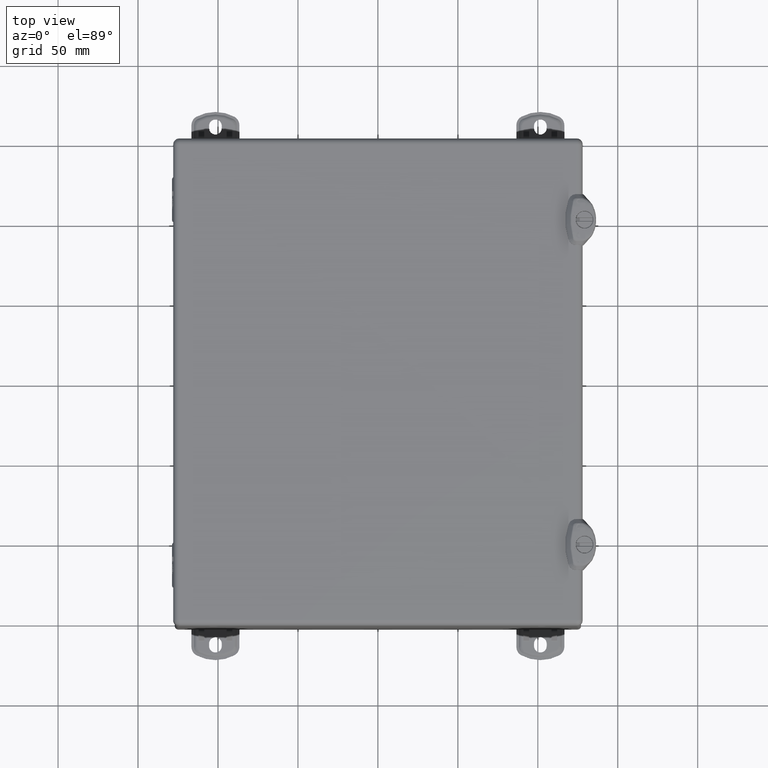
[diagram: clean part render]
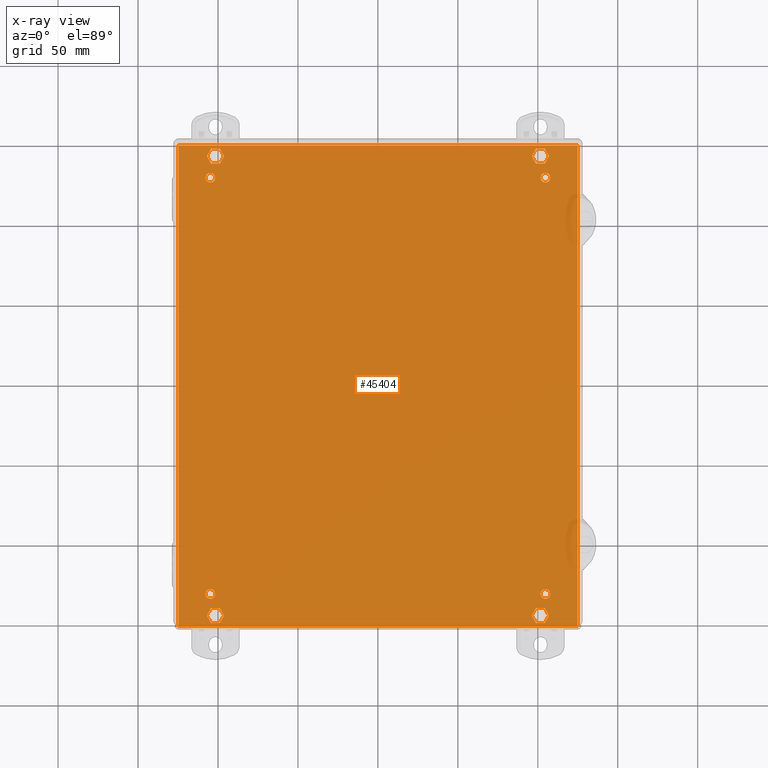
[diagram: x-ray — body ghosted, one internal face saturated and labeled with its STEP entity id]
A machine part, top view, then the same camera in x-ray: the body is ghosted and one INTERNAL B-rep face — a face not visible from any outside direction — is saturated and labeled: STEP entity #45404.
In plain terms, the highlighted planar face has unit normal (0, 0, 1).
Its self-contained STEP definition (entity closure, byte-faithful):
#2041=FACE_BOUND('',#7106,.T.);
#2042=FACE_BOUND('',#7107,.T.);
#2043=FACE_BOUND('',#7108,.T.);
#2044=FACE_BOUND('',#7109,.T.);
#2045=FACE_BOUND('',#7110,.T.);
#2046=FACE_BOUND('',#7111,.T.);
#2047=FACE_BOUND('',#7112,.T.);
#2048=FACE_BOUND('',#7113,.T.);
#3071=PLANE('',#48971);
#4304=FACE_OUTER_BOUND('',#7105,.T.);
#7105=EDGE_LOOP('',(#31372,#31373,#31374,#31375));
#7106=EDGE_LOOP('',(#31376));
#7107=EDGE_LOOP('',(#31377));
#7108=EDGE_LOOP('',(#31378));
#7109=EDGE_LOOP('',(#31379));
#7110=EDGE_LOOP('',(#31380,#31381,#31382,#31383,#31384,#31385));
#7111=EDGE_LOOP('',(#31386,#31387,#31388,#31389,#31390,#31391));
#7112=EDGE_LOOP('',(#31392,#31393,#31394,#31395,#31396,#31397));
#7113=EDGE_LOOP('',(#31398,#31399,#31400,#31401,#31402,#31403));
#9835=LINE('',#64717,#13693);
#9839=LINE('',#64724,#13697);
#9842=LINE('',#64730,#13700);
#9845=LINE('',#64736,#13703);
#9847=LINE('',#64741,#13705);
#9850=LINE('',#64745,#13708);
#9853=LINE('',#64753,#13711);
#9857=LINE('',#64760,#13715);
#9860=LINE('',#64766,#13718);
#9863=LINE('',#64772,#13721);
#9865=LINE('',#64777,#13723);
#9868=LINE('',#64781,#13726);
#9871=LINE('',#64789,#13729);
#9875=LINE('',#64796,#13733);
#9878=LINE('',#64802,#13736);
#9881=LINE('',#64808,#13739);
#9883=LINE('',#64813,#13741);
#9886=LINE('',#64817,#13744);
#9889=LINE('',#64825,#13747);
#9893=LINE('',#64832,#13751);
#9896=LINE('',#64838,#13754);
#9899=LINE('',#64844,#13757);
#9901=LINE('',#64849,#13759);
#9904=LINE('',#64853,#13762);
#10102=LINE('',#66090,#13960);
#10103=LINE('',#66092,#13961);
#10104=LINE('',#66094,#13962);
#10105=LINE('',#66096,#13963);
#13693=VECTOR('',#52743,0.393700787401575);
#13697=VECTOR('',#52749,0.393700787401575);
#13700=VECTOR('',#52754,0.393700787401575);
#13703=VECTOR('',#52759,0.393700787401575);
#13705=VECTOR('',#52763,0.393700787401575);
#13708=VECTOR('',#52768,0.393700787401575);
#13711=VECTOR('',#52773,0.393700787401575);
#13715=VECTOR('',#52779,0.393700787401575);
#13718=VECTOR('',#52784,0.393700787401575);
#13721=VECTOR('',#52789,0.393700787401575);
#13723=VECTOR('',#52793,0.393700787401575);
#13726=VECTOR('',#52798,0.393700787401575);
#13729=VECTOR('',#52803,0.393700787401575);
#13733=VECTOR('',#52809,0.393700787401575);
#13736=VECTOR('',#52814,0.393700787401575);
#13739=VECTOR('',#52819,0.393700787401575);
#13741=VECTOR('',#52823,0.393700787401575);
#13744=VECTOR('',#52828,0.393700787401575);
#13747=VECTOR('',#52833,0.393700787401575);
#13751=VECTOR('',#52839,0.393700787401575);
#13754=VECTOR('',#52844,0.393700787401575);
#13757=VECTOR('',#52849,0.393700787401575);
#13759=VECTOR('',#52853,0.393700787401575);
#13762=VECTOR('',#52858,0.393700787401575);
#13960=VECTOR('',#53626,0.393700787401575);
#13961=VECTOR('',#53629,0.393700787401575);
#13962=VECTOR('',#53632,0.393700787401575);
#13963=VECTOR('',#53635,0.393700787401575);
#17545=CIRCLE('',#48649,0.118);
#17547=CIRCLE('',#48652,0.118);
#17549=CIRCLE('',#48655,0.118);
#17551=CIRCLE('',#48658,0.118);
#19199=VERTEX_POINT('',#64687);
#19201=VERTEX_POINT('',#64693);
#19203=VERTEX_POINT('',#64699);
#19205=VERTEX_POINT('',#64705);
#19209=VERTEX_POINT('',#64714);
#19210=VERTEX_POINT('',#64716);
#19212=VERTEX_POINT('',#64722);
#19214=VERTEX_POINT('',#64728);
#19216=VERTEX_POINT('',#64734);
#19218=VERTEX_POINT('',#64740);
#19221=VERTEX_POINT('',#64750);
#19222=VERTEX_POINT('',#64752);
#19224=VERTEX_POINT('',#64758);
#19226=VERTEX_POINT('',#64764);
#19228=VERTEX_POINT('',#64770);
#19230=VERTEX_POINT('',#64776);
#19233=VERTEX_POINT('',#64786);
#19234=VERTEX_POINT('',#64788);
#19236=VERTEX_POINT('',#64794);
#19238=VERTEX_POINT('',#64800);
#19240=VERTEX_POINT('',#64806);
#19242=VERTEX_POINT('',#64812);
#19245=VERTEX_POINT('',#64822);
#19246=VERTEX_POINT('',#64824);
#19248=VERTEX_POINT('',#64830);
#19250=VERTEX_POINT('',#64836);
#19252=VERTEX_POINT('',#64842);
#19254=VERTEX_POINT('',#64848);
#19355=VERTEX_POINT('',#65426);
#19357=VERTEX_POINT('',#65434);
#19360=VERTEX_POINT('',#65443);
#19362=VERTEX_POINT('',#65454);
#23523=EDGE_CURVE('',#19199,#19199,#17545,.T.);
#23526=EDGE_CURVE('',#19201,#19201,#17547,.T.);
#23529=EDGE_CURVE('',#19203,#19203,#17549,.T.);
#23532=EDGE_CURVE('',#19205,#19205,#17551,.T.);
#23537=EDGE_CURVE('',#19210,#19209,#9835,.T.);
#23541=EDGE_CURVE('',#19209,#19212,#9839,.T.);
#23544=EDGE_CURVE('',#19212,#19214,#9842,.T.);
#23547=EDGE_CURVE('',#19214,#19216,#9845,.T.);
#23549=EDGE_CURVE('',#19218,#19210,#9847,.T.);
#23552=EDGE_CURVE('',#19216,#19218,#9850,.T.);
#23555=EDGE_CURVE('',#19222,#19221,#9853,.T.);
#23559=EDGE_CURVE('',#19221,#19224,#9857,.T.);
#23562=EDGE_CURVE('',#19224,#19226,#9860,.T.);
#23565=EDGE_CURVE('',#19226,#19228,#9863,.T.);
#23567=EDGE_CURVE('',#19230,#19222,#9865,.T.);
#23570=EDGE_CURVE('',#19228,#19230,#9868,.T.);
#23573=EDGE_CURVE('',#19234,#19233,#9871,.T.);
#23577=EDGE_CURVE('',#19233,#19236,#9875,.T.);
#23580=EDGE_CURVE('',#19236,#19238,#9878,.T.);
#23583=EDGE_CURVE('',#19238,#19240,#9881,.T.);
#23585=EDGE_CURVE('',#19242,#19234,#9883,.T.);
#23588=EDGE_CURVE('',#19240,#19242,#9886,.T.);
#23591=EDGE_CURVE('',#19246,#19245,#9889,.T.);
#23595=EDGE_CURVE('',#19245,#19248,#9893,.T.);
#23598=EDGE_CURVE('',#19248,#19250,#9896,.T.);
#23601=EDGE_CURVE('',#19250,#19252,#9899,.T.);
#23603=EDGE_CURVE('',#19254,#19246,#9901,.T.);
#23606=EDGE_CURVE('',#19252,#19254,#9904,.T.);
#23970=EDGE_CURVE('',#19360,#19362,#10102,.T.);
#23971=EDGE_CURVE('',#19355,#19362,#10103,.T.);
#23972=EDGE_CURVE('',#19357,#19360,#10104,.T.);
#23973=EDGE_CURVE('',#19355,#19357,#10105,.T.);
#31372=ORIENTED_EDGE('',*,*,#23971,.T.);
#31373=ORIENTED_EDGE('',*,*,#23970,.F.);
#31374=ORIENTED_EDGE('',*,*,#23972,.F.);
#31375=ORIENTED_EDGE('',*,*,#23973,.F.);
#31376=ORIENTED_EDGE('',*,*,#23523,.T.);
#31377=ORIENTED_EDGE('',*,*,#23526,.T.);
#31378=ORIENTED_EDGE('',*,*,#23529,.T.);
#31379=ORIENTED_EDGE('',*,*,#23532,.T.);
#31380=ORIENTED_EDGE('',*,*,#23544,.T.);
#31381=ORIENTED_EDGE('',*,*,#23547,.T.);
#31382=ORIENTED_EDGE('',*,*,#23552,.T.);
#31383=ORIENTED_EDGE('',*,*,#23549,.T.);
#31384=ORIENTED_EDGE('',*,*,#23537,.T.);
#31385=ORIENTED_EDGE('',*,*,#23541,.T.);
#31386=ORIENTED_EDGE('',*,*,#23562,.T.);
#31387=ORIENTED_EDGE('',*,*,#23565,.T.);
#31388=ORIENTED_EDGE('',*,*,#23570,.T.);
#31389=ORIENTED_EDGE('',*,*,#23567,.T.);
#31390=ORIENTED_EDGE('',*,*,#23555,.T.);
#31391=ORIENTED_EDGE('',*,*,#23559,.T.);
#31392=ORIENTED_EDGE('',*,*,#23580,.T.);
#31393=ORIENTED_EDGE('',*,*,#23583,.T.);
#31394=ORIENTED_EDGE('',*,*,#23588,.T.);
#31395=ORIENTED_EDGE('',*,*,#23585,.T.);
#31396=ORIENTED_EDGE('',*,*,#23573,.T.);
#31397=ORIENTED_EDGE('',*,*,#23577,.T.);
#31398=ORIENTED_EDGE('',*,*,#23598,.T.);
#31399=ORIENTED_EDGE('',*,*,#23601,.T.);
#31400=ORIENTED_EDGE('',*,*,#23606,.T.);
#31401=ORIENTED_EDGE('',*,*,#23603,.T.);
#31402=ORIENTED_EDGE('',*,*,#23591,.T.);
#31403=ORIENTED_EDGE('',*,*,#23595,.T.);
#45404=ADVANCED_FACE('',(#4304,#2041,#2042,#2043,#2044,#2045,#2046,#2047,
#2048),#3071,.T.);
#48649=AXIS2_PLACEMENT_3D('',#64688,#52713,#52714);
#48652=AXIS2_PLACEMENT_3D('',#64694,#52720,#52721);
#48655=AXIS2_PLACEMENT_3D('',#64700,#52727,#52728);
#48658=AXIS2_PLACEMENT_3D('',#64706,#52734,#52735);
#48971=AXIS2_PLACEMENT_3D('',#66095,#53633,#53634);
#52713=DIRECTION('center_axis',(0.,0.,-1.));
#52714=DIRECTION('ref_axis',(-1.03830763414205E-16,-1.,0.));
#52720=DIRECTION('center_axis',(0.,0.,-1.));
#52721=DIRECTION('ref_axis',(-1.03830763414205E-16,-1.,0.));
#52727=DIRECTION('center_axis',(0.,0.,-1.));
#52728=DIRECTION('ref_axis',(-1.03830763414205E-16,-1.,0.));
#52734=DIRECTION('center_axis',(0.,0.,-1.));
#52735=DIRECTION('ref_axis',(-1.03830763414205E-16,-1.,0.));
#52743=DIRECTION('',(1.,2.36873355770075E-16,0.));
#52749=DIRECTION('',(0.5,-0.866025403784438,0.));
#52754=DIRECTION('',(-0.499999999999999,-0.866025403784439,0.));
#52759=DIRECTION('',(-1.,-5.47028627767424E-16,0.));
#52763=DIRECTION('',(0.499999999999999,0.866025403784439,0.));
#52768=DIRECTION('',(-0.500000000000001,0.866025403784438,0.));
#52773=DIRECTION('',(1.,2.36873355770075E-16,0.));
#52779=DIRECTION('',(0.5,-0.866025403784438,0.));
#52784=DIRECTION('',(-0.499999999999999,-0.866025403784439,0.));
#52789=DIRECTION('',(-1.,-5.47028627767424E-16,0.));
#52793=DIRECTION('',(0.499999999999999,0.866025403784439,0.));
#52798=DIRECTION('',(-0.500000000000001,0.866025403784438,0.));
#52803=DIRECTION('',(-1.,2.07215854079987E-16,0.));
#52809=DIRECTION('',(-0.5,0.866025403784439,0.));
#52814=DIRECTION('',(0.5,0.866025403784439,0.));
#52819=DIRECTION('',(1.,1.02939417917362E-16,0.));
#52823=DIRECTION('',(-0.5,-0.866025403784439,0.));
#52828=DIRECTION('',(0.5,-0.866025403784438,0.));
#52833=DIRECTION('',(-1.,2.07215854079987E-16,0.));
#52839=DIRECTION('',(-0.5,0.866025403784439,0.));
#52844=DIRECTION('',(0.5,0.866025403784439,0.));
#52849=DIRECTION('',(1.,1.02939417917362E-16,0.));
#52853=DIRECTION('',(-0.5,-0.866025403784439,0.));
#52858=DIRECTION('',(0.5,-0.866025403784438,0.));
#53626=DIRECTION('',(-1.66859848653694E-32,-1.,0.));
#53629=DIRECTION('',(1.,0.,0.));
#53632=DIRECTION('',(1.,1.16798743743643E-32,0.));
#53633=DIRECTION('center_axis',(0.,0.,1.));
#53634=DIRECTION('ref_axis',(1.,0.,0.));
#53635=DIRECTION('',(1.66859848653694E-32,1.,0.));
#64687=CARTESIAN_POINT('',(4.125,-5.007,0.053));
#64688=CARTESIAN_POINT('Origin',(4.125,-5.125,0.053));
#64693=CARTESIAN_POINT('',(-4.125,-5.007,0.053));
#64694=CARTESIAN_POINT('Origin',(-4.125,-5.125,0.053));
#64699=CARTESIAN_POINT('',(-4.125,5.243,0.053));
#64700=CARTESIAN_POINT('Origin',(-4.125,5.125,0.053));
#64705=CARTESIAN_POINT('',(4.125,5.243,0.053));
#64706=CARTESIAN_POINT('Origin',(4.125,5.125,0.053));
#64714=CARTESIAN_POINT('',(4.10569601384771,-5.47292913385827,0.053));
#64716=CARTESIAN_POINT('',(3.89430398615229,-5.47292913385827,0.053));
#64717=CARTESIAN_POINT('',(2.05284800692386,-5.47292913385827,0.053));
#64722=CARTESIAN_POINT('',(4.21139202769542,-5.656,0.053));
#64724=CARTESIAN_POINT('',(2.46040810328229,-2.62320687968013,0.053));
#64728=CARTESIAN_POINT('',(4.10569601384771,-5.83907086614173,0.053));
#64730=CARTESIAN_POINT('',(4.85667993826083,-4.53832855339074,0.053));
#64734=CARTESIAN_POINT('',(3.89430398615229,-5.83907086614173,0.053));
#64736=CARTESIAN_POINT('',(1.94715199307615,-5.83907086614173,0.053));
#64740=CARTESIAN_POINT('',(3.78860797230459,-5.656,0.053));
#64741=CARTESIAN_POINT('',(4.59243990364156,-4.26372225417814,0.053));
#64745=CARTESIAN_POINT('',(2.09047205481532,-2.714742312751,0.053));
#64750=CARTESIAN_POINT('',(-3.89430398615229,-5.47292913385827,0.053));
#64752=CARTESIAN_POINT('',(-4.10569601384771,-5.47292913385827,0.053));
#64753=CARTESIAN_POINT('',(-1.94715199307614,-5.47292913385827,0.053));
#64758=CARTESIAN_POINT('',(-3.78860797230458,-5.656,0.053));
#64760=CARTESIAN_POINT('',(-4.53959189671771,-4.35525768724901,0.053));
#64764=CARTESIAN_POINT('',(-3.89430398615229,-5.83907086614173,0.053));
#64766=CARTESIAN_POINT('',(-2.14332006173917,-2.80627774582186,0.053));
#64770=CARTESIAN_POINT('',(-4.10569601384771,-5.83907086614173,0.053));
#64772=CARTESIAN_POINT('',(-2.05284800692385,-5.83907086614173,0.053));
#64776=CARTESIAN_POINT('',(-4.21139202769541,-5.656,0.053));
#64777=CARTESIAN_POINT('',(-2.40756009635844,-2.53167144660926,0.053));
#64781=CARTESIAN_POINT('',(-4.90952794518468,-4.44679312031987,0.053));
#64786=CARTESIAN_POINT('',(3.89430398615229,5.47292913385827,0.053));
#64788=CARTESIAN_POINT('',(4.10569601384771,5.47292913385827,0.053));
#64789=CARTESIAN_POINT('',(1.94715199307615,5.47292913385827,0.053));
#64794=CARTESIAN_POINT('',(3.78860797230459,5.656,0.053));
#64796=CARTESIAN_POINT('',(4.53959189671771,4.355257687249,0.053));
#64800=CARTESIAN_POINT('',(3.89430398615229,5.83907086614173,0.053));
#64802=CARTESIAN_POINT('',(2.14332006173917,2.80627774582186,0.053));
#64806=CARTESIAN_POINT('',(4.10569601384771,5.83907086614173,0.053));
#64808=CARTESIAN_POINT('',(2.05284800692385,5.83907086614173,0.053));
#64812=CARTESIAN_POINT('',(4.21139202769541,5.656,0.053));
#64813=CARTESIAN_POINT('',(2.40756009635844,2.53167144660926,0.053));
#64817=CARTESIAN_POINT('',(4.90952794518468,4.44679312031987,0.053));
#64822=CARTESIAN_POINT('',(-4.10569601384771,5.47292913385827,0.053));
#64824=CARTESIAN_POINT('',(-3.89430398615229,5.47292913385827,0.053));
#64825=CARTESIAN_POINT('',(-2.05284800692385,5.47292913385827,0.053));
#64830=CARTESIAN_POINT('',(-4.21139202769541,5.656,0.053));
#64832=CARTESIAN_POINT('',(-2.46040810328229,2.62320687968013,0.053));
#64836=CARTESIAN_POINT('',(-4.10569601384771,5.83907086614173,0.053));
#64838=CARTESIAN_POINT('',(-4.85667993826083,4.53832855339074,0.053));
#64842=CARTESIAN_POINT('',(-3.89430398615229,5.83907086614173,0.053));
#64844=CARTESIAN_POINT('',(-1.94715199307615,5.83907086614173,0.053));
#64848=CARTESIAN_POINT('',(-3.78860797230458,5.656,0.053));
#64849=CARTESIAN_POINT('',(-4.59243990364156,4.26372225417814,0.053));
#64853=CARTESIAN_POINT('',(-2.09047205481531,2.71474231275099,0.053));
#65426=CARTESIAN_POINT('',(-4.916,-5.916,0.053));
#65434=CARTESIAN_POINT('',(-4.916,5.916,0.053));
#65443=CARTESIAN_POINT('',(4.916,5.916,0.053));
#65454=CARTESIAN_POINT('',(4.916,-5.916,0.053));
#66090=CARTESIAN_POINT('',(4.916,-4.07555180336648E-32,0.053));
#66092=CARTESIAN_POINT('',(-2.5,-5.916,0.053));
#66094=CARTESIAN_POINT('',(-2.88988878668617E-17,5.916,0.053));
#66095=CARTESIAN_POINT('Origin',(-5.77977757337233E-17,0.,0.053));
#66096=CARTESIAN_POINT('',(-4.916,4.07555180336648E-32,0.053));